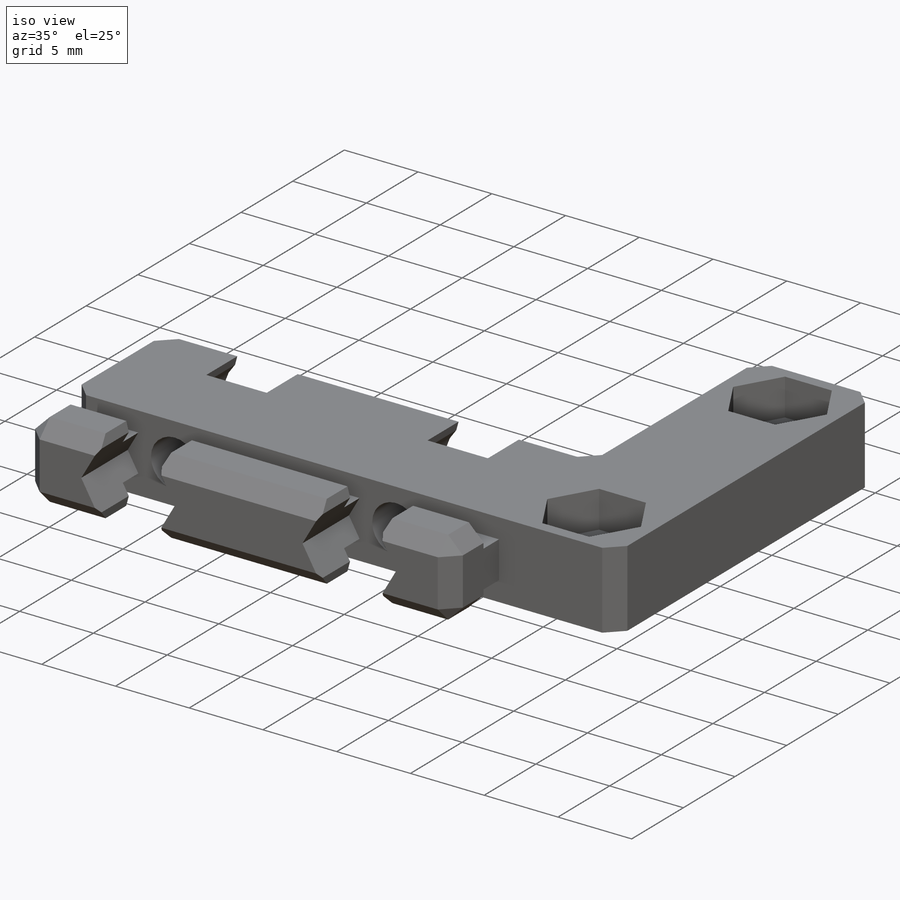
[diagram: iso view]
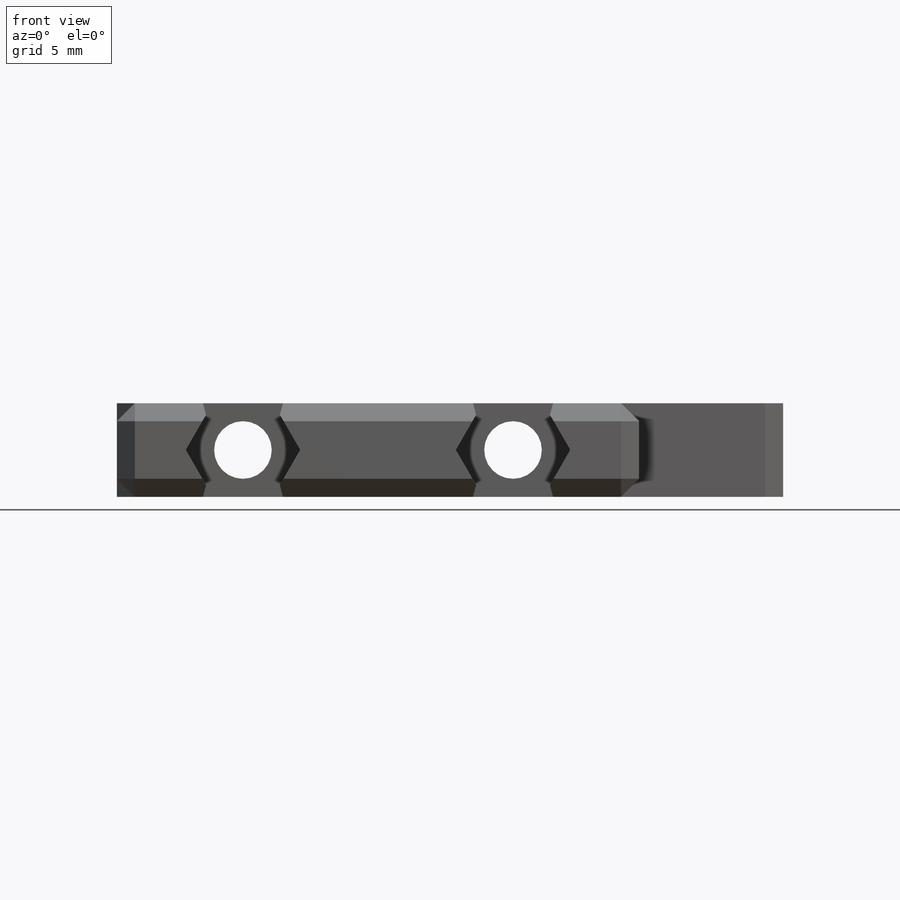
[diagram: front view]
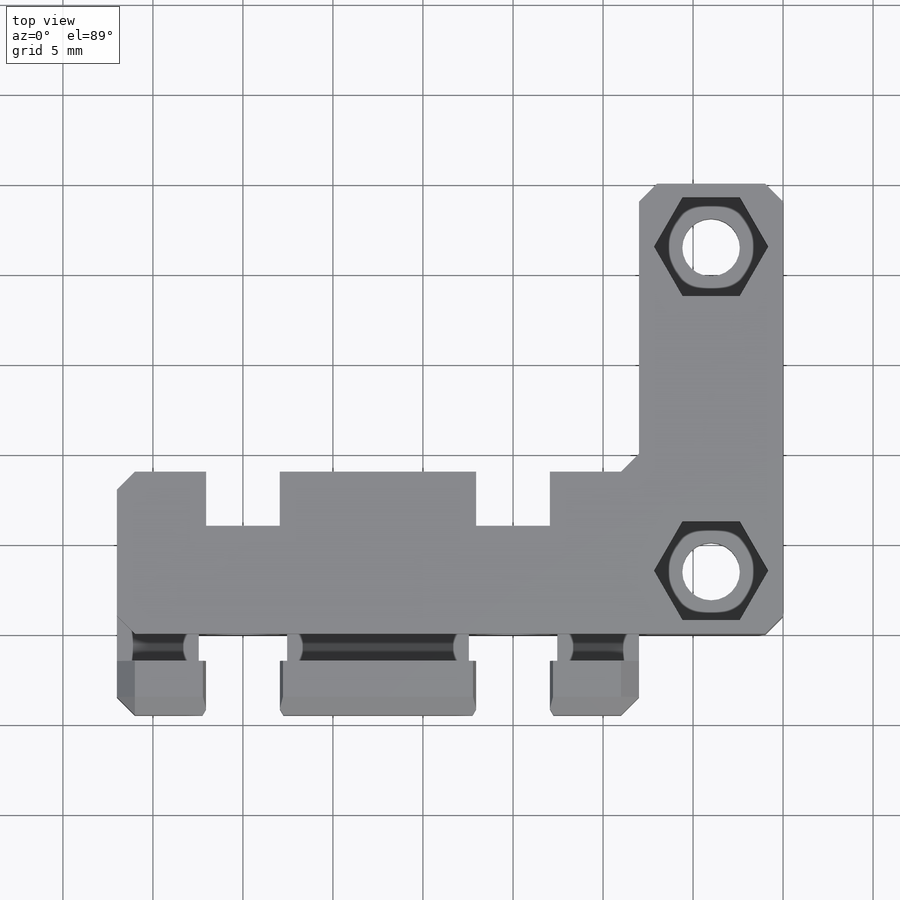
[diagram: top view]
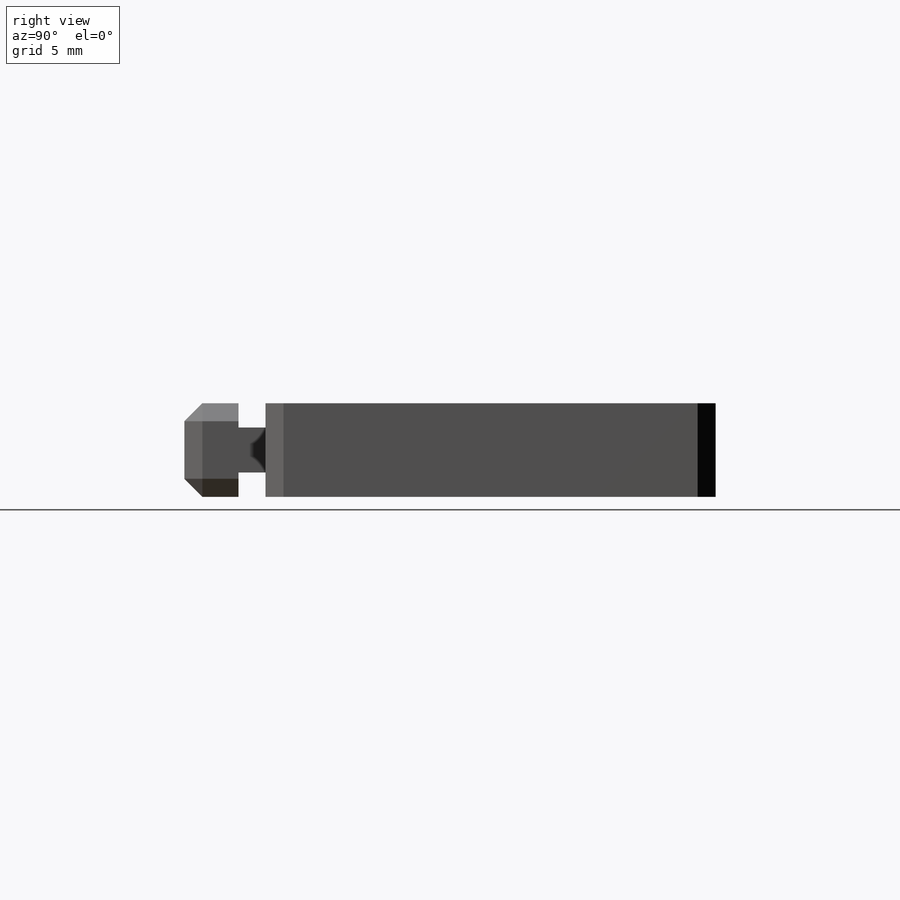
[diagram: right view]
SOLIDWORKS PART (.sldprt)
format: sldprt  version: not decoded by parser v0  size: 347,136 bytes
history: native  units: mm
features: sketch x7, cut_extrude x5, extrude x2, chamfer x2, material x1 (+12 scaffold rows collapsed)
feature tree (29):
  scaffold x12  (default folders/planes/origin — collapsed)
  material  "Material <not specified>"
  sketch  "Sketch1"  dims[D1=25.0mm D2=8.0mm D3=37.0mm D4=9.0mm]
  extrude  "Boss-Extrude1"  Depth=5.2mm
  sketch  "Sketch2"  dims[D1=3.2mm D2=18.0mm]
  cut_extrude  "Cut-Extrude1"  [1 undecoded]
  sketch  "Sketch3"  dims[D1=5.5mm D2=1.0mm D3=1.0mm]
  cut_extrude  "Cut-Extrude2"  Depth=2.5mm
  sketch  "Sketch4"  dims[D1=2.5mm D2=1.5mm D3=3.0mm]
  extrude  "Boss-Extrude2"  [1 undecoded]
  sketch  "Sketch5"  dims[D1=3.2mm D2=15.0mm]
  cut_extrude  "Cut-Extrude3"  [1 undecoded]
  sketch  "Sketch6"  dims[D1=5.5mm]
  cut_extrude  "Cut-Extrude4"  [1 undecoded]
  sketch  "Sketch7"  dims[D1=6.0mm]
  cut_extrude  "Cut-Extrude5"  Depth=3mm
  chamfer  "Chamfer1"  Distance=0.75mm Angle=45deg
  chamfer  "Chamfer2"  Distance=1mm Angle=45deg
decode coverage: 12 of 16 modeling features carry decoded parameters
note: 4 parameter values undecoded
summary: no parameter record found for 4 features
note: suppression state not decoded; provenance and decode notes live in map.json
